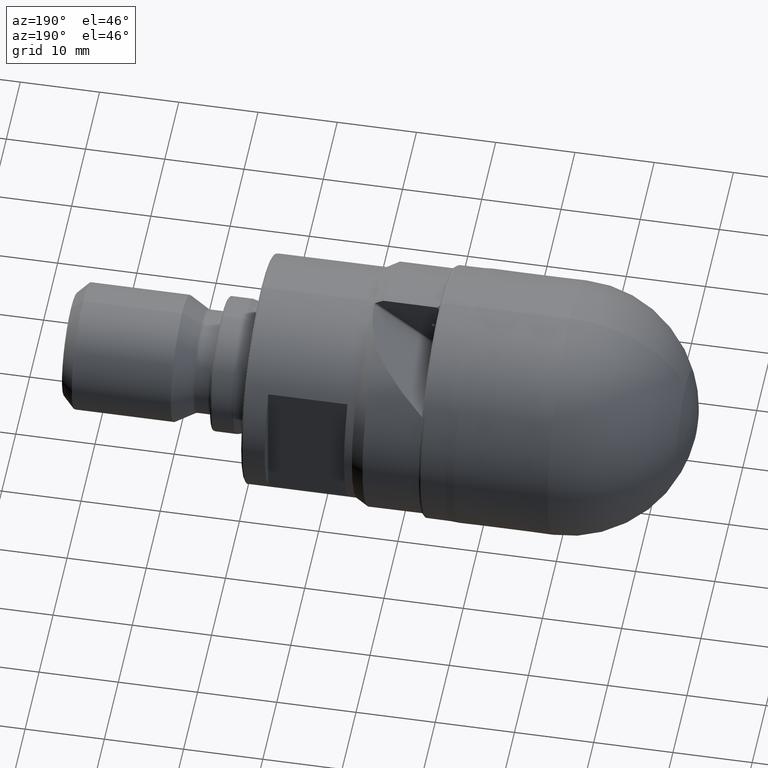
[diagram: clean part render]
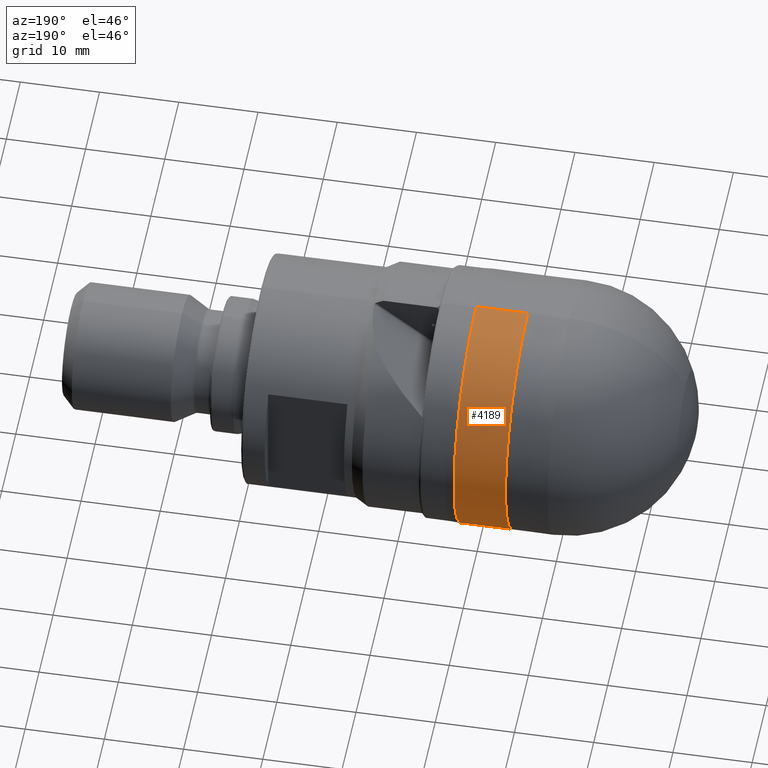
[diagram: same view with one face highlighted and labeled with its STEP entity id]
A machine part, auxiliary view. The second image highlights one B-rep face of the part: STEP entity #4189.
In plain terms, the highlighted conical surface has half-angle 0.205 deg.
Its self-contained STEP definition (entity closure, byte-faithful):
#426 = CARTESIAN_POINT ( 'NONE',  ( 15.37399361817337606, 0.0000000000000000000, 0.0000000000000000000 ) ) ;
#530 = VERTEX_POINT ( 'NONE', #2163 ) ;
#763 = DIRECTION ( 'NONE',  ( 0.9999935981210866798, 0.0000000000000000000, -0.003578228170824903839 ) ) ;
#912 = VECTOR ( 'NONE', #763, 1000.000000000000000 ) ;
#1029 = LINE ( 'NONE', #3312, #4485 ) ;
#1064 = CONICAL_SURFACE ( 'NONE', #1865, 15.89874445913536505, 0.003578235806638948701 ) ;
#1099 = ORIENTED_EDGE ( 'NONE', *, *, #4195, .T. ) ;
#1205 = DIRECTION ( 'NONE',  ( -1.000000000000000000, -0.0000000000000000000, -0.0000000000000000000 ) ) ;
#1464 = AXIS2_PLACEMENT_3D ( 'NONE', #1759, #3608, #2919 ) ;
#1563 = VERTEX_POINT ( 'NONE', #2341 ) ;
#1625 = CIRCLE ( 'NONE', #1464, 15.94136482375843933 ) ;
#1759 = CARTESIAN_POINT ( 'NONE',  ( 21.86266271554157470, 0.0000000000000000000, 0.0000000000000000000 ) ) ;
#1865 = AXIS2_PLACEMENT_3D ( 'NONE', #4453, #2180, #2852 ) ;
#1935 = EDGE_CURVE ( 'NONE', #4273, #4219, #4644, .T. ) ;
#2139 = FACE_OUTER_BOUND ( 'NONE', #2983, .T. ) ;
#2157 = CARTESIAN_POINT ( 'NONE',  ( 15.37399361817337606, 0.0000000000000000000, -15.91814673656369017 ) ) ;
#2163 = CARTESIAN_POINT ( 'NONE',  ( 21.86266271554157470, 0.0000000000000000000, 15.94136482375843933 ) ) ;
#2180 = DIRECTION ( 'NONE',  ( 1.000000000000000000, 0.0000000000000000000, 0.0000000000000000000 ) ) ;
#2235 = EDGE_CURVE ( 'NONE', #4273, #530, #1029, .T. ) ;
#2239 = CARTESIAN_POINT ( 'NONE',  ( 9.951714129265143427, 0.0000000000000000000, -15.89874445913536505 ) ) ;
#2341 = CARTESIAN_POINT ( 'NONE',  ( 21.86266271554157470, 1.952254140545598453E-15, -15.94136482375843933 ) ) ;
#2428 = ORIENTED_EDGE ( 'NONE', *, *, #1935, .F. ) ;
#2545 = CARTESIAN_POINT ( 'NONE',  ( 15.37399361817337606, 1.950832442737329339E-15, 15.91814673656369017 ) ) ;
#2852 = DIRECTION ( 'NONE',  ( 0.0000000000000000000, 0.0000000000000000000, -1.000000000000000000 ) ) ;
#2919 = DIRECTION ( 'NONE',  ( 0.0000000000000000000, 0.0000000000000000000, 1.000000000000000000 ) ) ;
#2983 = EDGE_LOOP ( 'NONE', ( #2428, #4903, #1099, #4549 ) ) ;
#3312 = CARTESIAN_POINT ( 'NONE',  ( 9.951714129265143427, 1.947034651234184283E-15, 15.89874445913536505 ) ) ;
#3401 = LINE ( 'NONE', #2239, #912 ) ;
#3608 = DIRECTION ( 'NONE',  ( -1.000000000000000000, -0.0000000000000000000, -0.0000000000000000000 ) ) ;
#3994 = EDGE_CURVE ( 'NONE', #4219, #1563, #3401, .T. ) ;
#4189 = ADVANCED_FACE ( 'NONE', ( #2139 ), #1064, .T. ) ;
#4195 = EDGE_CURVE ( 'NONE', #530, #1563, #1625, .T. ) ;
#4219 = VERTEX_POINT ( 'NONE', #2157 ) ;
#4273 = VERTEX_POINT ( 'NONE', #2545 ) ;
#4337 = AXIS2_PLACEMENT_3D ( 'NONE', #426, #1205, #4529 ) ;
#4453 = CARTESIAN_POINT ( 'NONE',  ( 9.951714129265143427, 0.0000000000000000000, 0.0000000000000000000 ) ) ;
#4485 = VECTOR ( 'NONE', #4827, 1000.000000000000000 ) ;
#4529 = DIRECTION ( 'NONE',  ( 0.0000000000000000000, 0.0000000000000000000, -1.000000000000000000 ) ) ;
#4549 = ORIENTED_EDGE ( 'NONE', *, *, #3994, .F. ) ;
#4644 = CIRCLE ( 'NONE', #4337, 15.91814673656369017 ) ;
#4827 = DIRECTION ( 'NONE',  ( 0.9999935981210866798, 4.382065676019606775E-19, 0.003578228170824903839 ) ) ;
#4903 = ORIENTED_EDGE ( 'NONE', *, *, #2235, .T. ) ;